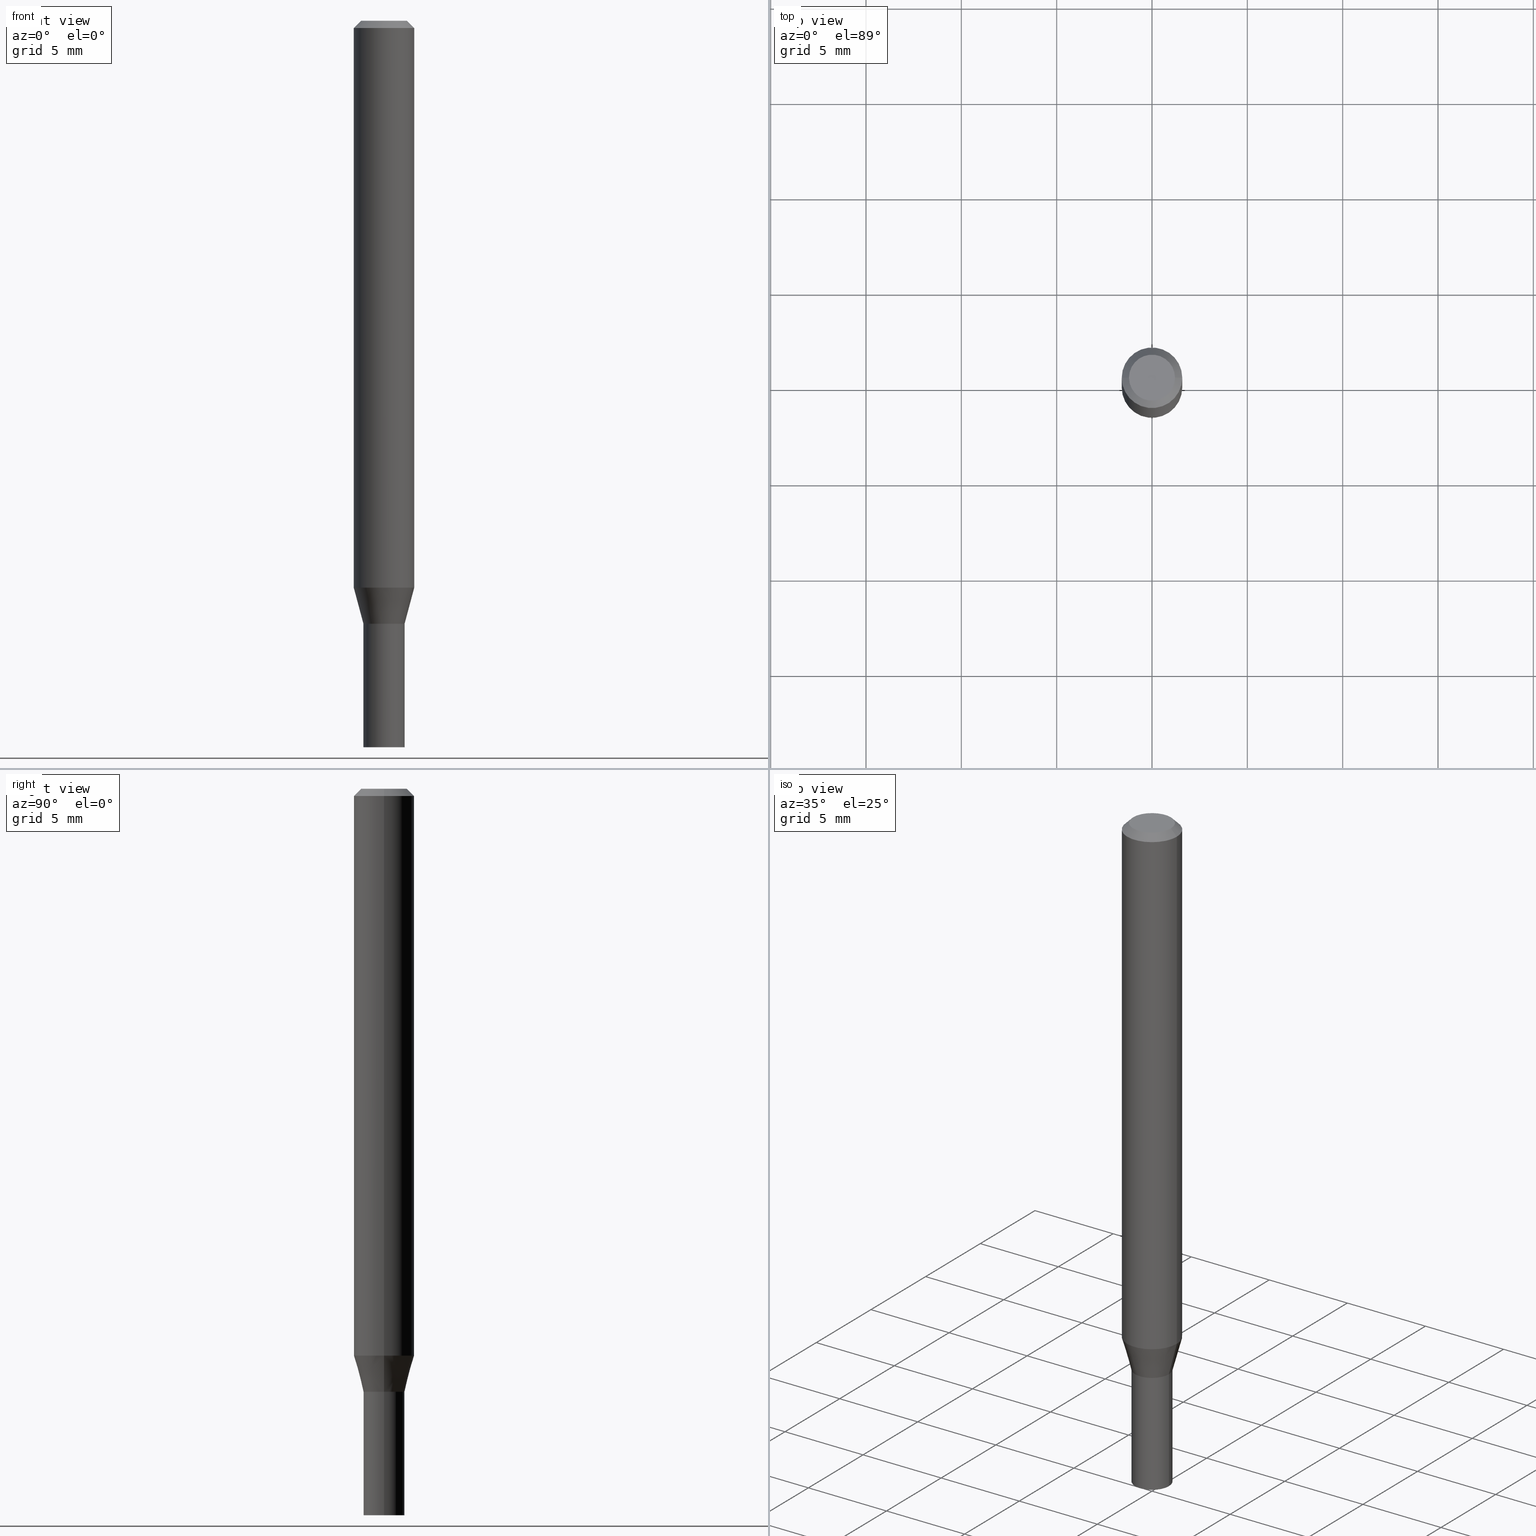
[diagram: canonical four-view strip — front | top / right | iso, engineering-drawing reading convention]
A machine part, canonical four-view strip (front | top / right | iso — engineering-drawing reading convention). The complete STEP part file that produces these views, byte-faithful:
ISO-10303-21;
HEADER;
FILE_DESCRIPTION (( 'STEP AP203' ),
    '1' );
FILE_NAME ('04173.STEP',
    '2024-03-14T17:11:27',
    ( '' ),
    ( '' ),
    'SwSTEP 2.0',
    'SolidWorks 2023',
    '' );
FILE_SCHEMA (( 'CONFIG_CONTROL_DESIGN' ));
ENDSEC;

DATA;
#1 = CARTESIAN_POINT ( 'NONE',  ( 3.044608663700496655E-29, -4.346894266859718224E-15, -1.245000000000000551 ) ) ;
#2 = AXIS2_PLACEMENT_3D ( 'NONE', #245, #105, #337 ) ;
#3 = CARTESIAN_POINT ( 'NONE',  ( 3.044608663700496655E-29, -4.346894266859718224E-15, -1.245000000000000551 ) ) ;
#4 = ORIENTED_EDGE ( 'NONE', *, *, #405, .T. ) ;
#5 = CARTESIAN_POINT ( 'NONE',  ( 3.044608663700495534E-29, -4.346894266859716647E-15, -1.245000000000000329 ) ) ;
#6 = ORIENTED_EDGE ( 'NONE', *, *, #369, .T. ) ;
#7 = PLANE ( 'NONE',  #281 ) ;
#8 = CC_DESIGN_PERSON_AND_ORGANIZATION_ASSIGNMENT ( #332, #18, ( #425 ) ) ;
#9 = AXIS2_PLACEMENT_3D ( 'NONE', #150, #10, #387 ) ;
#10 = DIRECTION ( 'NONE',  ( -2.445468806185136597E-29, 3.491481338843145583E-15, 1.000000000000000000 ) ) ;
#11 = CARTESIAN_POINT ( 'NONE',  ( -0.06250000000000000000, 4.440892098500626162E-16, -3.074334431409316114E-30 ) ) ;
#12 = VERTEX_POINT ( 'NONE', #170 ) ;
#13 = DIRECTION ( 'NONE',  ( -2.438088387897960049E-29, 3.491481338843145188E-15, 1.000000000000000000 ) ) ;
#14 = LINE ( 'NONE', #11, #110 ) ;
#15 = DIRECTION ( 'NONE',  ( -2.445468806185136597E-29, 3.491481338843145583E-15, 1.000000000000000000 ) ) ;
#16 = AXIS2_PLACEMENT_3D ( 'NONE', #299, #295, #70 ) ;
#17 = FACE_OUTER_BOUND ( 'NONE', #233, .T. ) ;
#18 = PERSON_AND_ORGANIZATION_ROLE ( 'classification_officer' ) ;
#19 = VERTEX_POINT ( 'NONE', #262 ) ;
#20 = DIRECTION ( 'NONE',  ( -2.445468806185136597E-29, 3.491481338843145583E-15, 1.000000000000000000 ) ) ;
#21 = MECHANICAL_CONTEXT ( 'NONE', #46, 'mechanical' ) ;
#22 =( CONVERSION_BASED_UNIT ( 'INCH', #238 ) LENGTH_UNIT ( ) NAMED_UNIT ( #417 ) );
#23 = EDGE_CURVE ( 'NONE', #397, #72, #241, .T. ) ;
#24 = LOCAL_TIME ( 13, 11, 27.00000000000000000, #416 ) ;
#25 = DIRECTION ( 'NONE',  ( 2.438088387897960049E-29, -3.491481338843145188E-15, -1.000000000000000000 ) ) ;
#26 =( LENGTH_UNIT ( ) NAMED_UNIT ( * ) SI_UNIT ( $, .METRE. ) );
#27 = ORIENTED_EDGE ( 'NONE', *, *, #456, .F. ) ;
#28 = DIRECTION ( 'NONE',  ( -0.2588190451025216832, 5.211531920934551831E-15, 0.9659258262890679791 ) ) ;
#29 = COORDINATED_UNIVERSAL_TIME_OFFSET ( 5, 0, .BEHIND. ) ;
#30 = VERTEX_POINT ( 'NONE', #140 ) ;
#31 = PERSON_AND_ORGANIZATION ( #270, #195 ) ;
#32 = CIRCLE ( 'NONE', #94, 0.04250000000000019734 ) ;
#33 = AXIS2_PLACEMENT_3D ( 'NONE', #291, #15, #400 ) ;
#34 = ORIENTED_EDGE ( 'NONE', *, *, #428, .F. ) ;
#35 = FACE_OUTER_BOUND ( 'NONE', #246, .T. ) ;
#36 = ORIENTED_EDGE ( 'NONE', *, *, #192, .F. ) ;
#37 = CARTESIAN_POINT ( 'NONE',  ( -0.06250000000000000000, 3.840629472727444916E-16, -0.01499999999999999944 ) ) ;
#38 = CC_DESIGN_APPROVAL ( #135, ( #80 ) ) ;
#39 = EDGE_LOOP ( 'NONE', ( #237, #344, #69, #430 ) ) ;
#40 = CARTESIAN_POINT ( 'NONE',  ( 0.06250000000000000000, -4.522721719210286280E-15, -1.170358983848623469 ) ) ;
#41 = ADVANCED_FACE ( 'NONE', ( #380 ), #292, .T. ) ;
#42 = EDGE_CURVE ( 'NONE', #225, #82, #174, .T. ) ;
#43 = FACE_OUTER_BOUND ( 'NONE', #118, .T. ) ;
#44 = CIRCLE ( 'NONE', #393, 0.04249999999999999611 ) ;
#45 = CARTESIAN_POINT ( 'NONE',  ( 0.04250000000000019734, -4.643670180661383298E-15, -1.244999999999999885 ) ) ;
#46 = APPLICATION_CONTEXT ( 'configuration controlled 3d designs of mechanical parts and assemblies' ) ;
#47 = VECTOR ( 'NONE', #130, 39.37007874015748143 ) ;
#48 = CC_DESIGN_APPROVAL ( #239, ( #56 ) ) ;
#49 = DIRECTION ( 'NONE',  ( -2.445468806185136597E-29, 3.491481338843145583E-15, 1.000000000000000000 ) ) ;
#50 = DIRECTION ( 'NONE',  ( -2.445468806185136877E-29, 3.491481338843145188E-15, 1.000000000000000000 ) ) ;
#51 = DIRECTION ( 'NONE',  ( 1.000000000000000000, -6.982962677686276177E-15, 0.000000000000000000 ) ) ;
#52 = DIRECTION ( 'NONE',  ( -2.445468806185136597E-29, 3.491481338843145583E-15, 1.000000000000000000 ) ) ;
#53 = DIRECTION ( 'NONE',  ( 1.000000000000000000, -6.982962677686267499E-15, 4.876176775795935793E-29 ) ) ;
#54 = AXIS2_PLACEMENT_3D ( 'NONE', #111, #243, #101 ) ;
#55 = CIRCLE ( 'NONE', #138, 0.06250000000000000000 ) ;
#56 = PRODUCT_DEFINITION_FORMATION_WITH_SPECIFIED_SOURCE ( 'ANY', '', #263, .NOT_KNOWN. ) ;
#57 = DIRECTION ( 'NONE',  ( 0.7071067811865452413, -7.319954787623248157E-15, -0.7071067811865497932 ) ) ;
#58 = SECURITY_CLASSIFICATION_LEVEL ( 'unclassified' ) ;
#59 = DIRECTION ( 'NONE',  ( 1.000000000000000000, -6.982962677686254089E-15, 0.000000000000000000 ) ) ;
#60 = PERSON_AND_ORGANIZATION_ROLE ( 'creator' ) ;
#61 = ADVANCED_FACE ( 'NONE', ( #17 ), #414, .T. ) ;
#62 = EDGE_CURVE ( 'NONE', #12, #302, #143, .T. ) ;
#63 = ORIENTED_EDGE ( 'NONE', *, *, #141, .T. ) ;
#64 = CARTESIAN_POINT ( 'NONE',  ( -0.04249999999999999611, -4.490077474864174959E-15, -1.245000000000000329 ) ) ;
#65 = EDGE_LOOP ( 'NONE', ( #264, #63 ) ) ;
#66 = CIRCLE ( 'NONE', #175, 0.04249999999999999611 ) ;
#67 = VERTEX_POINT ( 'NONE', #107 ) ;
#68 = PERSON_AND_ORGANIZATION ( #270, #195 ) ;
#69 = ORIENTED_EDGE ( 'NONE', *, *, #221, .T. ) ;
#70 = DIRECTION ( 'NONE',  ( 1.000000000000000000, -6.982962677686265922E-15, 4.876176775795935793E-29 ) ) ;
#71 = APPROVAL_DATE_TIME ( #463, #239 ) ;
#72 = VERTEX_POINT ( 'NONE', #384 ) ;
#73 = DIRECTION ( 'NONE',  ( -2.445468806185136597E-29, 3.491481338843145583E-15, 1.000000000000000000 ) ) ;
#74 = ORIENTED_EDGE ( 'NONE', *, *, #244, .F. ) ;
#75 = AXIS2_PLACEMENT_3D ( 'NONE', #258, #52, #444 ) ;
#76 = ADVANCED_FACE ( 'NONE', ( #172 ), #137, .F. ) ;
#77 = ORIENTED_EDGE ( 'NONE', *, *, #286, .T. ) ;
#78 = CARTESIAN_POINT ( 'NONE',  ( -0.04250000000000019734, 3.019806626980439812E-16, -2.090547413358344318E-30 ) ) ;
#79 = ORIENTED_EDGE ( 'NONE', *, *, #102, .F. ) ;
#80 = PRODUCT_DEFINITION ( 'UNKNOWN', '', #56, #446 ) ;
#81 = FACE_OUTER_BOUND ( 'NONE', #39, .T. ) ;
#82 = VERTEX_POINT ( 'NONE', #339 ) ;
#83 = EDGE_LOOP ( 'NONE', ( #127, #376 ) ) ;
#84 = CONICAL_SURFACE ( 'NONE', #187, 0.06250000000000000000, 0.7853981633974450594 ) ;
#85 = ORIENTED_EDGE ( 'NONE', *, *, #333, .T. ) ;
#86 = DIRECTION ( 'NONE',  ( -2.445468806185136877E-29, 3.491481338843145188E-15, 1.000000000000000000 ) ) ;
#87 = LOCAL_TIME ( 13, 11, 27.00000000000000000, #163 ) ;
#88 = CARTESIAN_POINT ( 'NONE',  ( 3.668203209277705088E-31, -5.237222008264718399E-17, -0.01499999999999999944 ) ) ;
#89 = EDGE_CURVE ( 'NONE', #72, #189, #265, .T. ) ;
#90 = LINE ( 'NONE', #421, #359 ) ;
#91 = CYLINDRICAL_SURFACE ( 'NONE', #276, 0.04249999999999999611 ) ;
#92 = EDGE_CURVE ( 'NONE', #72, #397, #464, .T. ) ;
#93 = CARTESIAN_POINT ( 'NONE',  ( 3.043385929297403293E-29, -4.345148526190295932E-15, -1.244500000000000384 ) ) ;
#94 = AXIS2_PLACEMENT_3D ( 'NONE', #388, #282, #353 ) ;
#95 = DIRECTION ( 'NONE',  ( 1.000000000000000000, -6.982962677686276177E-15, 0.000000000000000000 ) ) ;
#96 = DIRECTION ( 'NONE',  ( 1.000000000000000000, -6.982962677686275388E-15, 0.000000000000000000 ) ) ;
#97 = CLOSED_SHELL ( 'NONE', ( #176, #41, #318, #61, #183, #297, #203, #429, #298, #373, #285, #124 ) ) ;
#98 = CONICAL_SURFACE ( 'NONE', #117, 0.04199999999999999567, 0.7853981633974739252 ) ;
#99 = CC_DESIGN_PERSON_AND_ORGANIZATION_ASSIGNMENT ( #31, #60, ( #56 ) ) ;
#100 = ORIENTED_EDGE ( 'NONE', *, *, #428, .T. ) ;
#101 = DIRECTION ( 'NONE',  ( 1.000000000000000000, -6.982962677686266711E-15, 4.876176775795935793E-29 ) ) ;
#102 = EDGE_CURVE ( 'NONE', #67, #225, #308, .T. ) ;
#103 = CARTESIAN_POINT ( 'NONE',  ( -2.427605901612193195E-45, 3.465977845273231710E-31, 9.926955091278351202E-17 ) ) ;
#104 = CALENDAR_DATE ( 2024, 14, 3 ) ;
#105 = DIRECTION ( 'NONE',  ( -2.445468806185136597E-29, 3.491481338843145583E-15, 1.000000000000000000 ) ) ;
#106 = EDGE_LOOP ( 'NONE', ( #404, #432, #386, #27 ) ) ;
#107 = CARTESIAN_POINT ( 'NONE',  ( -0.04749999999999999362, 3.578768372314212971E-16, 9.926955091278110846E-17 ) ) ;
#108 = CALENDAR_DATE ( 2024, 14, 3 ) ;
#109 = ORIENTED_EDGE ( 'NONE', *, *, #351, .T. ) ;
#110 = VECTOR ( 'NONE', #287, 39.37007874015748143 ) ;
#111 = CARTESIAN_POINT ( 'NONE',  ( 0.000000000000000000, 0.000000000000000000, 0.000000000000000000 ) ) ;
#112 = COORDINATED_UNIVERSAL_TIME_OFFSET ( 5, 0, .BEHIND. ) ;
#113 = CYLINDRICAL_SURFACE ( 'NONE', #9, 0.04250000000000019734 ) ;
#114 = APPROVAL_STATUS ( 'not_yet_approved' ) ;
#115 = APPLICATION_CONTEXT ( 'configuration controlled 3d designs of mechanical parts and assemblies' ) ;
#116 = VERTEX_POINT ( 'NONE', #64 ) ;
#117 = AXIS2_PLACEMENT_3D ( 'NONE', #1, #152, #121 ) ;
#118 = EDGE_LOOP ( 'NONE', ( #412, #439 ) ) ;
#119 = EDGE_CURVE ( 'NONE', #225, #67, #374, .T. ) ;
#120 = ORIENTED_EDGE ( 'NONE', *, *, #333, .F. ) ;
#121 = DIRECTION ( 'NONE',  ( 1.000000000000000000, -6.982962677686275388E-15, 0.000000000000000000 ) ) ;
#122 = UNCERTAINTY_MEASURE_WITH_UNIT (LENGTH_MEASURE( 1.000000000000000082E-05 ), #22, 'distance_accuracy_value', 'NONE');
#123 = VERTEX_POINT ( 'NONE', #159 ) ;
#124 = ADVANCED_FACE ( 'NONE', ( #390 ), #113, .F. ) ;
#125 = AXIS2_PLACEMENT_3D ( 'NONE', #458, #139, #269 ) ;
#126 = LINE ( 'NONE', #198, #259 ) ;
#127 = ORIENTED_EDGE ( 'NONE', *, *, #102, .T. ) ;
#128 = CARTESIAN_POINT ( 'NONE',  ( 2.967759138016967261E-16, 0.04249999999999565237, -1.245000000000000551 ) ) ;
#129 = DIRECTION ( 'NONE',  ( 1.000000000000000000, -6.982962677686262766E-15, 0.000000000000000000 ) ) ;
#130 = DIRECTION ( 'NONE',  ( -2.445468806185136877E-29, 3.491481338843145188E-15, 1.000000000000000000 ) ) ;
#131 = CARTESIAN_POINT ( 'NONE',  ( 0.000000000000000000, 0.000000000000000000, 0.000000000000000000 ) ) ;
#132 = LINE ( 'NONE', #196, #438 ) ;
#133 = DIRECTION ( 'NONE',  ( 1.000000000000000000, -6.982962677686266711E-15, 0.000000000000000000 ) ) ;
#134 = CARTESIAN_POINT ( 'NONE',  ( 0.04749999999999999362, -4.035134999187576651E-16, 9.926955091278610047E-17 ) ) ;
#135 = APPROVAL ( #420, 'UNSPECIFIED' ) ;
#136 = EDGE_LOOP ( 'NONE', ( #36, #4, #217, #305 ) ) ;
#137 = PLANE ( 'NONE',  #16 ) ;
#138 = AXIS2_PLACEMENT_3D ( 'NONE', #370, #455, #133 ) ;
#139 = DIRECTION ( 'NONE',  ( -2.445468806185136597E-29, 3.491481338843145583E-15, 1.000000000000000000 ) ) ;
#140 = CARTESIAN_POINT ( 'NONE',  ( 0.04249999999999999611, -5.533997922066385616E-15, -1.500000000000000222 ) ) ;
#141 = EDGE_CURVE ( 'NONE', #116, #19, #44, .T. ) ;
#142 = APPLICATION_PROTOCOL_DEFINITION ( 'international standard', 'config_control_design', 1994, #46 ) ;
#143 = LINE ( 'NONE', #201, #424 ) ;
#144 = DATE_TIME_ROLE ( 'creation_date' ) ;
#145 = VERTEX_POINT ( 'NONE', #279 ) ;
#146 = VECTOR ( 'NONE', #86, 39.37007874015748143 ) ;
#147 = PERSON_AND_ORGANIZATION_ROLE ( 'design_supplier' ) ;
#148 = EDGE_CURVE ( 'NONE', #30, #145, #375, .T. ) ;
#149 = CC_DESIGN_PERSON_AND_ORGANIZATION_ASSIGNMENT ( #180, #147, ( #56 ) ) ;
#150 = CARTESIAN_POINT ( 'NONE',  ( 0.000000000000000000, 0.000000000000000000, 0.000000000000000000 ) ) ;
#151 = ORIENTED_EDGE ( 'NONE', *, *, #391, .T. ) ;
#152 = DIRECTION ( 'NONE',  ( -2.445468806185136597E-29, 3.491481338843145583E-15, 1.000000000000000000 ) ) ;
#153 = AXIS2_PLACEMENT_3D ( 'NONE', #5, #49, #197 ) ;
#154 = FACE_OUTER_BOUND ( 'NONE', #321, .T. ) ;
#155 = DIRECTION ( 'NONE',  ( -2.445468806185136597E-29, 3.491481338843145583E-15, 1.000000000000000000 ) ) ;
#156 = DIRECTION ( 'NONE',  ( -2.445468806185136597E-29, 3.491481338843145583E-15, 1.000000000000000000 ) ) ;
#157 = EDGE_LOOP ( 'NONE', ( #361, #249, #120, #392 ) ) ;
#158 = DIRECTION ( 'NONE',  ( -2.445468806185136877E-29, 3.491481338843145188E-15, 1.000000000000000000 ) ) ;
#159 = CARTESIAN_POINT ( 'NONE',  ( -0.06250000000000000000, -1.625240176118708426E-15, -0.01499999999999999944 ) ) ;
#160 = VECTOR ( 'NONE', #186, 39.37007874015748143 ) ;
#161 = FACE_OUTER_BOUND ( 'NONE', #136, .T. ) ;
#162 = LINE ( 'NONE', #218, #413 ) ;
#163 = COORDINATED_UNIVERSAL_TIME_OFFSET ( 5, 0, .BEHIND. ) ;
#164 = CARTESIAN_POINT ( 'NONE',  ( 3.668203209277705088E-31, -5.237222008264718399E-17, -0.01499999999999999944 ) ) ;
#165 = CYLINDRICAL_SURFACE ( 'NONE', #349, 0.06250000000000000000 ) ;
#166 =( GEOMETRIC_REPRESENTATION_CONTEXT ( 3 ) GLOBAL_UNCERTAINTY_ASSIGNED_CONTEXT ( ( #122 ) ) GLOBAL_UNIT_ASSIGNED_CONTEXT ( ( #22, #205, #462 ) ) REPRESENTATION_CONTEXT ( 'NONE', 'WORKASPACE' ) );
#167 = LOCAL_TIME ( 13, 11, 27.00000000000000000, #112 ) ;
#168 = DIRECTION ( 'NONE',  ( 1.000000000000000000, -6.982962677686266711E-15, 0.000000000000000000 ) ) ;
#169 = DATE_AND_TIME ( #261, #87 ) ;
#170 = CARTESIAN_POINT ( 'NONE',  ( -0.04199999999999999567, -4.045817090666363103E-15, -1.245000000000000551 ) ) ;
#171 = CC_DESIGN_PERSON_AND_ORGANIZATION_ASSIGNMENT ( #347, #273, ( #263 ) ) ;
#172 = FACE_OUTER_BOUND ( 'NONE', #247, .T. ) ;
#173 = APPROVAL_ROLE ( '' ) ;
#174 = LINE ( 'NONE', #204, #358 ) ;
#175 = AXIS2_PLACEMENT_3D ( 'NONE', #193, #406, #95 ) ;
#176 = ADVANCED_FACE ( 'NONE', ( #327 ), #449, .F. ) ;
#177 = CARTESIAN_POINT ( 'NONE',  ( -0.04250000000000019734, -4.043167863492251902E-15, -1.244500000000000384 ) ) ;
#178 = DIRECTION ( 'NONE',  ( -0.7071067811865656694, 7.493145998870420424E-15, 0.7071067811865294761 ) ) ;
#179 = DATE_AND_TIME ( #378, #433 ) ;
#180 = PERSON_AND_ORGANIZATION ( #270, #195 ) ;
#181 = ORIENTED_EDGE ( 'NONE', *, *, #283, .F. ) ;
#182 = CC_DESIGN_DATE_AND_TIME_ASSIGNMENT ( #179, #144, ( #80 ) ) ;
#183 = ADVANCED_FACE ( 'NONE', ( #226 ), #194, .T. ) ;
#184 = EDGE_LOOP ( 'NONE', ( #379, #355, #151, #451 ) ) ;
#185 = VERTEX_POINT ( 'NONE', #364 ) ;
#186 = DIRECTION ( 'NONE',  ( -0.7071067811865452413, 2.468850131082233000E-15, -0.7071067811865497932 ) ) ;
#187 = AXIS2_PLACEMENT_3D ( 'NONE', #191, #460, #357 ) ;
#188 = EDGE_LOOP ( 'NONE', ( #435, #100, #6, #314 ) ) ;
#189 = VERTEX_POINT ( 'NONE', #409 ) ;
#190 = DIRECTION ( 'NONE',  ( 1.000000000000000000, -6.982962677686267499E-15, 4.884662768193073002E-29 ) ) ;
#191 = CARTESIAN_POINT ( 'NONE',  ( 3.668203209277705088E-31, -5.237222008264718399E-17, -0.01499999999999999944 ) ) ;
#192 = EDGE_CURVE ( 'NONE', #189, #123, #14, .T. ) ;
#193 = CARTESIAN_POINT ( 'NONE',  ( 3.668203209277704895E-29, -5.237222008264718177E-15, -1.500000000000000222 ) ) ;
#194 = CONICAL_SURFACE ( 'NONE', #216, 0.04250000000000019734, 0.2617993877991502960 ) ;
#195 = ORGANIZATION ( 'UNSPECIFIED', 'UNSPECIFIED', '' ) ;
#196 = CARTESIAN_POINT ( 'NONE',  ( 0.04250000000000019734, -4.643670180661383298E-15, -1.244999999999999885 ) ) ;
#197 = DIRECTION ( 'NONE',  ( 1.000000000000000000, -6.982962677686265133E-15, 0.000000000000000000 ) ) ;
#198 = CARTESIAN_POINT ( 'NONE',  ( 0.04250000000000019734, -2.967759138016676861E-16, 2.072375129713282311E-30 ) ) ;
#199 = AXIS2_PLACEMENT_3D ( 'NONE', #326, #13, #362 ) ;
#200 = ORIENTED_EDGE ( 'NONE', *, *, #148, .F. ) ;
#201 = CARTESIAN_POINT ( 'NONE',  ( -0.04199999999999999567, -4.048466317840475881E-15, -1.245000000000000551 ) ) ;
#202 = AXIS2_PLACEMENT_3D ( 'NONE', #164, #322, #447 ) ;
#203 = ADVANCED_FACE ( 'NONE', ( #161 ), #165, .T. ) ;
#204 = CARTESIAN_POINT ( 'NONE',  ( 0.06250000000000000000, -4.811533449433679005E-16, -0.01499999999999999944 ) ) ;
#205 =( NAMED_UNIT ( * ) PLANE_ANGLE_UNIT ( ) SI_UNIT ( $, .RADIAN. ) );
#206 = PERSON_AND_ORGANIZATION ( #270, #195 ) ;
#207 = ADVANCED_FACE ( 'NONE', ( #403 ), #91, .T. ) ;
#208 = CC_DESIGN_DATE_AND_TIME_ASSIGNMENT ( #169, #453, ( #425 ) ) ;
#209 = CARTESIAN_POINT ( 'NONE',  ( 3.668203209277704895E-29, -5.237222008264718177E-15, -1.500000000000000222 ) ) ;
#210 = AXIS2_PLACEMENT_3D ( 'NONE', #93, #156, #228 ) ;
#211 = LINE ( 'NONE', #78, #288 ) ;
#212 = EDGE_LOOP ( 'NONE', ( #338, #434, #74, #348 ) ) ;
#213 = DIRECTION ( 'NONE',  ( -2.445468806185136877E-29, 3.491481338843145188E-15, 1.000000000000000000 ) ) ;
#214 = PERSON_AND_ORGANIZATION ( #270, #195 ) ;
#215 = ORIENTED_EDGE ( 'NONE', *, *, #192, .T. ) ;
#216 = AXIS2_PLACEMENT_3D ( 'NONE', #407, #320, #445 ) ;
#217 = ORIENTED_EDGE ( 'NONE', *, *, #254, .T. ) ;
#218 = CARTESIAN_POINT ( 'NONE',  ( -0.04249999999999999611, 3.019806626980425514E-16, -2.090547413358334859E-30 ) ) ;
#219 = ORIENTED_EDGE ( 'NONE', *, *, #42, .F. ) ;
#220 = PLANE ( 'NONE',  #199 ) ;
#221 = EDGE_CURVE ( 'NONE', #82, #123, #399, .T. ) ;
#222 = APPROVAL ( #114, 'UNSPECIFIED' ) ;
#223 = CARTESIAN_POINT ( 'NONE',  ( 0.04199999999999999567, -4.640178699322541079E-15, -1.245000000000000551 ) ) ;
#224 = DIRECTION ( 'NONE',  ( -2.445468806185136597E-29, 3.491481338843145583E-15, 1.000000000000000000 ) ) ;
#225 = VERTEX_POINT ( 'NONE', #134 ) ;
#226 = FACE_OUTER_BOUND ( 'NONE', #157, .T. ) ;
#227 = DIRECTION ( 'NONE',  ( 1.000000000000000000, -6.982962677686267499E-15, 4.876176775795935793E-29 ) ) ;
#228 = DIRECTION ( 'NONE',  ( 1.000000000000000000, -6.982962677686265922E-15, 0.000000000000000000 ) ) ;
#229 = DIRECTION ( 'NONE',  ( -2.445468806185136597E-29, 3.491481338843145583E-15, 1.000000000000000000 ) ) ;
#230 = DIRECTION ( 'NONE',  ( 1.000000000000000000, -6.982962677686254089E-15, 0.000000000000000000 ) ) ;
#231 = CIRCLE ( 'NONE', #75, 0.06250000000000000000 ) ;
#232 = CC_DESIGN_SECURITY_CLASSIFICATION ( #425, ( #56 ) ) ;
#233 = EDGE_LOOP ( 'NONE', ( #85, #215, #278, #466 ) ) ;
#234 = CARTESIAN_POINT ( 'NONE',  ( 3.044608663700494973E-29, -4.346894266859715858E-15, -1.244999999999999885 ) ) ;
#235 = APPROVAL_DATE_TIME ( #240, #135 ) ;
#236 = DIRECTION ( 'NONE',  ( -2.445468806185136597E-29, 3.491481338843145583E-15, 1.000000000000000000 ) ) ;
#237 = ORIENTED_EDGE ( 'NONE', *, *, #119, .F. ) ;
#238 = LENGTH_MEASURE_WITH_UNIT ( LENGTH_MEASURE( 0.02539999999999999897 ), #26 );
#239 = APPROVAL ( #274, 'UNSPECIFIED' ) ;
#240 = DATE_AND_TIME ( #108, #24 ) ;
#241 = CIRCLE ( 'NONE', #300, 0.04250000000000019734 ) ;
#242 = AXIS2_PLACEMENT_3D ( 'NONE', #131, #334, #227 ) ;
#243 = DIRECTION ( 'NONE',  ( -2.445468806185136597E-29, 3.491481338843145583E-15, 1.000000000000000000 ) ) ;
#244 = EDGE_CURVE ( 'NONE', #19, #116, #251, .T. ) ;
#245 = CARTESIAN_POINT ( 'NONE',  ( 3.044608663700496655E-29, -4.346894266859718224E-15, -1.245000000000000551 ) ) ;
#246 = EDGE_LOOP ( 'NONE', ( #352, #381, #316, #280 ) ) ;
#247 = EDGE_LOOP ( 'NONE', ( #200, #34 ) ) ;
#248 = AXIS2_PLACEMENT_3D ( 'NONE', #209, #236, #51 ) ;
#249 = ORIENTED_EDGE ( 'NONE', *, *, #89, .T. ) ;
#250 = AXIS2_PLACEMENT_3D ( 'NONE', #234, #377, #59 ) ;
#251 = CIRCLE ( 'NONE', #153, 0.04249999999999999611 ) ;
#252 = LINE ( 'NONE', #365, #146 ) ;
#253 = CC_DESIGN_PERSON_AND_ORGANIZATION_ASSIGNMENT ( #68, #346, ( #80 ) ) ;
#254 = EDGE_CURVE ( 'NONE', #394, #82, #325, .T. ) ;
#255 = APPROVAL_ROLE ( '' ) ;
#256 = DIRECTION ( 'NONE',  ( 2.438088387897960049E-29, -3.491481338843145188E-15, -1.000000000000000000 ) ) ;
#257 = DIRECTION ( 'NONE',  ( 1.000000000000000000, -6.982962677686265133E-15, 0.000000000000000000 ) ) ;
#258 = CARTESIAN_POINT ( 'NONE',  ( 2.862076387040342886E-29, -4.086286551854895399E-15, -1.170358983848623469 ) ) ;
#259 = VECTOR ( 'NONE', #158, 39.37007874015748143 ) ;
#260 = FACE_OUTER_BOUND ( 'NONE', #65, .T. ) ;
#261 = CALENDAR_DATE ( 2024, 14, 3 ) ;
#262 = CARTESIAN_POINT ( 'NONE',  ( 0.04249999999999999611, -4.643670180661383298E-15, -1.245000000000000329 ) ) ;
#263 = PRODUCT ( '04173', '04173', '', ( #21 ) ) ;
#264 = ORIENTED_EDGE ( 'NONE', *, *, #244, .T. ) ;
#265 = LINE ( 'NONE', #345, #275 ) ;
#266 = CARTESIAN_POINT ( 'NONE',  ( 0.000000000000000000, 0.000000000000000000, 0.000000000000000000 ) ) ;
#267 = CIRCLE ( 'NONE', #431, 0.06250000000000000000 ) ;
#268 = DIRECTION ( 'NONE',  ( -1.000000000000000000, 6.982962677686265922E-15, -4.876176775795935793E-29 ) ) ;
#269 = DIRECTION ( 'NONE',  ( 1.000000000000000000, -6.982962677686267499E-15, 4.884662768193073002E-29 ) ) ;
#270 = PERSON ( 'UNSPECIFIED', 'UNSPECIFIED', 'UNSPECIFIED', ('UNSPECIFIED'), ('UNSPECIFIED'), ('UNSPECIFIED') ) ;
#271 = EDGE_CURVE ( 'NONE', #185, #302, #32, .T. ) ;
#272 = DIRECTION ( 'NONE',  ( -2.445468806185136597E-29, 3.491481338843145583E-15, 1.000000000000000000 ) ) ;
#273 = PERSON_AND_ORGANIZATION_ROLE ( 'design_owner' ) ;
#274 = APPROVAL_STATUS ( 'not_yet_approved' ) ;
#275 = VECTOR ( 'NONE', #28, 39.37007874015748143 ) ;
#276 = AXIS2_PLACEMENT_3D ( 'NONE', #452, #224, #53 ) ;
#277 = LOCAL_TIME ( 13, 11, 27.00000000000000000, #304 ) ;
#278 = ORIENTED_EDGE ( 'NONE', *, *, #221, .F. ) ;
#279 = CARTESIAN_POINT ( 'NONE',  ( -0.04249999999999999611, -4.490077474864174959E-15, -1.500000000000000222 ) ) ;
#280 = ORIENTED_EDGE ( 'NONE', *, *, #391, .F. ) ;
#281 = AXIS2_PLACEMENT_3D ( 'NONE', #128, #256, #402 ) ;
#282 = DIRECTION ( 'NONE',  ( -2.445468806185136597E-29, 3.491481338843145583E-15, 1.000000000000000000 ) ) ;
#283 = EDGE_CURVE ( 'NONE', #72, #302, #211, .T. ) ;
#284 = ORIENTED_EDGE ( 'NONE', *, *, #92, .T. ) ;
#285 = ADVANCED_FACE ( 'NONE', ( #35 ), #98, .T. ) ;
#286 = EDGE_CURVE ( 'NONE', #67, #123, #356, .T. ) ;
#287 = DIRECTION ( 'NONE',  ( -2.445468806185136877E-29, 3.491481338843145188E-15, 1.000000000000000000 ) ) ;
#288 = VECTOR ( 'NONE', #213, 39.37007874015748143 ) ;
#289 = CARTESIAN_POINT ( 'NONE',  ( 3.044608663700495534E-29, -4.346894266859716647E-15, -1.245000000000000329 ) ) ;
#290 = CARTESIAN_POINT ( 'NONE',  ( 0.06250000000000000000, -4.364351673553916694E-16, 3.047610484872459871E-30 ) ) ;
#291 = CARTESIAN_POINT ( 'NONE',  ( 0.000000000000000000, 0.000000000000000000, 0.000000000000000000 ) ) ;
#292 = CONICAL_SURFACE ( 'NONE', #457, 0.04199999999999999567, 0.7853981633974739252 ) ;
#293 = DIRECTION ( 'NONE',  ( 0.7071067811865656694, -2.468850131082446387E-15, 0.7071067811865294761 ) ) ;
#294 = MANIFOLD_SOLID_BREP ( 'Body-Move/Copy2[1]', #341 ) ;
#295 = DIRECTION ( 'NONE',  ( -2.438088387897960049E-29, 3.491481338843145188E-15, 1.000000000000000000 ) ) ;
#296 = FACE_OUTER_BOUND ( 'NONE', #83, .T. ) ;
#297 = ADVANCED_FACE ( 'NONE', ( #154 ), #301, .T. ) ;
#298 = ADVANCED_FACE ( 'NONE', ( #296 ), #343, .F. ) ;
#299 = CARTESIAN_POINT ( 'NONE',  ( 3.576687321579069994E-29, -5.368277968210015545E-15, -1.500000000000000222 ) ) ;
#300 = AXIS2_PLACEMENT_3D ( 'NONE', #306, #331, #422 ) ;
#301 = CONICAL_SURFACE ( 'NONE', #315, 0.04250000000000019734, 0.2617993877991502960 ) ;
#302 = VERTEX_POINT ( 'NONE', #177 ) ;
#303 = PERSON_AND_ORGANIZATION ( #270, #195 ) ;
#304 = COORDINATED_UNIVERSAL_TIME_OFFSET ( 5, 0, .BEHIND. ) ;
#305 = ORIENTED_EDGE ( 'NONE', *, *, #313, .F. ) ;
#306 = CARTESIAN_POINT ( 'NONE',  ( 3.044608663700494973E-29, -4.346894266859715858E-15, -1.244999999999999885 ) ) ;
#307 = DIRECTION ( 'NONE',  ( 0.000000000000000000, 0.000000000000000000, 1.000000000000000000 ) ) ;
#308 = CIRCLE ( 'NONE', #125, 0.04749999999999999362 ) ;
#309 = CIRCLE ( 'NONE', #368, 0.04199999999999999567 ) ;
#310 = DIRECTION ( 'NONE',  ( 1.000000000000000000, -6.982962677686275388E-15, 0.000000000000000000 ) ) ;
#311 = ADVANCED_FACE ( 'NONE', ( #330 ), #372, .T. ) ;
#312 = EDGE_LOOP ( 'NONE', ( #219, #79, #77, #396 ) ) ;
#313 = EDGE_CURVE ( 'NONE', #123, #82, #55, .T. ) ;
#314 = ORIENTED_EDGE ( 'NONE', *, *, #141, .F. ) ;
#315 = AXIS2_PLACEMENT_3D ( 'NONE', #366, #272, #230 ) ;
#316 = ORIENTED_EDGE ( 'NONE', *, *, #456, .T. ) ;
#317 = EDGE_LOOP ( 'NONE', ( #181, #350, #109, #360 ) ) ;
#318 = ADVANCED_FACE ( 'NONE', ( #81 ), #84, .T. ) ;
#319 = FACE_OUTER_BOUND ( 'NONE', #312, .T. ) ;
#320 = DIRECTION ( 'NONE',  ( -2.445468806185136597E-29, 3.491481338843145583E-15, 1.000000000000000000 ) ) ;
#321 = EDGE_LOOP ( 'NONE', ( #354, #284, #389, #395 ) ) ;
#322 = DIRECTION ( 'NONE',  ( 2.445468806185136597E-29, -3.491481338843145583E-15, -1.000000000000000000 ) ) ;
#323 = CIRCLE ( 'NONE', #210, 0.04250000000000019734 ) ;
#324 = EDGE_CURVE ( 'NONE', #12, #426, #309, .T. ) ;
#325 = LINE ( 'NONE', #290, #47 ) ;
#326 = CARTESIAN_POINT ( 'NONE',  ( 3.044608663700496655E-29, -4.346894266859718224E-15, -1.245000000000000551 ) ) ;
#327 = FACE_OUTER_BOUND ( 'NONE', #184, .T. ) ;
#328 = AXIS2_PLACEMENT_3D ( 'NONE', #88, #367, #168 ) ;
#329 = APPROVAL_PERSON_ORGANIZATION ( #206, #239, #423 ) ;
#330 = FACE_OUTER_BOUND ( 'NONE', #188, .T. ) ;
#331 = DIRECTION ( 'NONE',  ( -2.445468806185136597E-29, 3.491481338843145583E-15, 1.000000000000000000 ) ) ;
#332 = PERSON_AND_ORGANIZATION ( #270, #195 ) ;
#333 = EDGE_CURVE ( 'NONE', #394, #189, #267, .T. ) ;
#334 = DIRECTION ( 'NONE',  ( -2.445468806185136597E-29, 3.491481338843145583E-15, 1.000000000000000000 ) ) ;
#335 = EDGE_CURVE ( 'NONE', #145, #116, #162, .T. ) ;
#336 = DATE_AND_TIME ( #104, #277 ) ;
#337 = DIRECTION ( 'NONE',  ( 1.000000000000000000, -6.982962677686275388E-15, 0.000000000000000000 ) ) ;
#338 = ORIENTED_EDGE ( 'NONE', *, *, #148, .T. ) ;
#339 = CARTESIAN_POINT ( 'NONE',  ( 0.06250000000000000000, -4.888073874380388472E-16, -0.01499999999999999944 ) ) ;
#340 = APPLICATION_PROTOCOL_DEFINITION ( 'international standard', 'config_control_design', 1994, #115 ) ;
#341 = CLOSED_SHELL ( 'NONE', ( #207, #76, #311, #443 ) ) ;
#342 = CONICAL_SURFACE ( 'NONE', #202, 0.06250000000000000000, 0.7853981633974450594 ) ;
#343 = PLANE ( 'NONE',  #408 ) ;
#344 = ORIENTED_EDGE ( 'NONE', *, *, #42, .T. ) ;
#345 = CARTESIAN_POINT ( 'NONE',  ( -0.04250000000000019734, -4.044913604161671827E-15, -1.244999999999999885 ) ) ;
#346 = PERSON_AND_ORGANIZATION_ROLE ( 'creator' ) ;
#347 = PERSON_AND_ORGANIZATION ( #270, #195 ) ;
#348 = ORIENTED_EDGE ( 'NONE', *, *, #369, .F. ) ;
#349 = AXIS2_PLACEMENT_3D ( 'NONE', #441, #229, #371 ) ;
#350 = ORIENTED_EDGE ( 'NONE', *, *, #23, .F. ) ;
#351 = EDGE_CURVE ( 'NONE', #397, #185, #126, .T. ) ;
#352 = ORIENTED_EDGE ( 'NONE', *, *, #62, .F. ) ;
#353 = DIRECTION ( 'NONE',  ( 1.000000000000000000, -6.982962677686265922E-15, 0.000000000000000000 ) ) ;
#354 = ORIENTED_EDGE ( 'NONE', *, *, #89, .F. ) ;
#355 = ORIENTED_EDGE ( 'NONE', *, *, #283, .T. ) ;
#356 = LINE ( 'NONE', #37, #160 ) ;
#357 = DIRECTION ( 'NONE',  ( -1.000000000000000000, 6.982962677686266711E-15, 0.000000000000000000 ) ) ;
#358 = VECTOR ( 'NONE', #57, 39.37007874015748143 ) ;
#359 = VECTOR ( 'NONE', #293, 39.37007874015748143 ) ;
#360 = ORIENTED_EDGE ( 'NONE', *, *, #271, .T. ) ;
#361 = ORIENTED_EDGE ( 'NONE', *, *, #23, .T. ) ;
#362 = DIRECTION ( 'NONE',  ( 1.000000000000000000, -6.982962677686265922E-15, 4.876176775795935793E-29 ) ) ;
#363 = DIRECTION ( 'NONE',  ( -2.445468806185136597E-29, 3.491481338843145583E-15, 1.000000000000000000 ) ) ;
#364 = CARTESIAN_POINT ( 'NONE',  ( 0.04250000000000019734, -4.641924439991964161E-15, -1.244500000000000384 ) ) ;
#365 = CARTESIAN_POINT ( 'NONE',  ( 0.04249999999999999611, -2.967759138016663549E-16, 2.072375129713272502E-30 ) ) ;
#366 = CARTESIAN_POINT ( 'NONE',  ( 3.044608663700494973E-29, -4.346894266859715858E-15, -1.244999999999999885 ) ) ;
#367 = DIRECTION ( 'NONE',  ( -2.445468806185136597E-29, 3.491481338843145583E-15, 1.000000000000000000 ) ) ;
#368 = AXIS2_PLACEMENT_3D ( 'NONE', #3, #155, #310 ) ;
#369 = EDGE_CURVE ( 'NONE', #30, #19, #252, .T. ) ;
#370 = CARTESIAN_POINT ( 'NONE',  ( 3.668203209277705088E-31, -5.237222008264718399E-17, -0.01499999999999999944 ) ) ;
#371 = DIRECTION ( 'NONE',  ( 1.000000000000000000, -6.982962677686266711E-15, 4.876176775795935793E-29 ) ) ;
#372 = CYLINDRICAL_SURFACE ( 'NONE', #242, 0.04249999999999999611 ) ;
#373 = ADVANCED_FACE ( 'NONE', ( #43 ), #220, .F. ) ;
#374 = CIRCLE ( 'NONE', #437, 0.04749999999999999362 ) ;
#375 = CIRCLE ( 'NONE', #248, 0.04249999999999999611 ) ;
#376 = ORIENTED_EDGE ( 'NONE', *, *, #119, .T. ) ;
#377 = DIRECTION ( 'NONE',  ( -2.445468806185136597E-29, 3.491481338843145583E-15, 1.000000000000000000 ) ) ;
#378 = CALENDAR_DATE ( 2024, 14, 3 ) ;
#379 = ORIENTED_EDGE ( 'NONE', *, *, #92, .F. ) ;
#380 = FACE_OUTER_BOUND ( 'NONE', #106, .T. ) ;
#381 = ORIENTED_EDGE ( 'NONE', *, *, #324, .T. ) ;
#382 = APPROVAL_DATE_TIME ( #336, #222 ) ;
#383 = APPROVAL_PERSON_ORGANIZATION ( #303, #135, #173 ) ;
#384 = CARTESIAN_POINT ( 'NONE',  ( -0.04250000000000019734, -3.843555473083252305E-15, -1.244999999999999885 ) ) ;
#385 = CALENDAR_DATE ( 2024, 14, 3 ) ;
#386 = ORIENTED_EDGE ( 'NONE', *, *, #271, .F. ) ;
#387 = DIRECTION ( 'NONE',  ( 1.000000000000000000, -6.982962677686265922E-15, 4.876176775795935793E-29 ) ) ;
#388 = CARTESIAN_POINT ( 'NONE',  ( 3.043385929297403293E-29, -4.345148526190295932E-15, -1.244500000000000384 ) ) ;
#389 = ORIENTED_EDGE ( 'NONE', *, *, #401, .T. ) ;
#390 = FACE_OUTER_BOUND ( 'NONE', #317, .T. ) ;
#391 = EDGE_CURVE ( 'NONE', #302, #185, #323, .T. ) ;
#392 = ORIENTED_EDGE ( 'NONE', *, *, #401, .F. ) ;
#393 = AXIS2_PLACEMENT_3D ( 'NONE', #289, #73, #257 ) ;
#394 = VERTEX_POINT ( 'NONE', #40 ) ;
#395 = ORIENTED_EDGE ( 'NONE', *, *, #405, .F. ) ;
#396 = ORIENTED_EDGE ( 'NONE', *, *, #313, .T. ) ;
#397 = VERTEX_POINT ( 'NONE', #45 ) ;
#398 = DIRECTION ( 'NONE',  ( -2.445468806185136597E-29, 3.491481338843145583E-15, 1.000000000000000000 ) ) ;
#399 = CIRCLE ( 'NONE', #328, 0.06250000000000000000 ) ;
#400 = DIRECTION ( 'NONE',  ( 1.000000000000000000, -6.982962677686265922E-15, 4.876176775795935793E-29 ) ) ;
#401 = EDGE_CURVE ( 'NONE', #397, #394, #132, .T. ) ;
#402 = DIRECTION ( 'NONE',  ( -1.000000000000000000, 6.982962677686265922E-15, -4.876176775795935793E-29 ) ) ;
#403 = FACE_OUTER_BOUND ( 'NONE', #212, .T. ) ;
#404 = ORIENTED_EDGE ( 'NONE', *, *, #465, .T. ) ;
#405 = EDGE_CURVE ( 'NONE', #189, #394, #231, .T. ) ;
#406 = DIRECTION ( 'NONE',  ( -2.445468806185136597E-29, 3.491481338843145583E-15, 1.000000000000000000 ) ) ;
#407 = CARTESIAN_POINT ( 'NONE',  ( 3.044608663700494973E-29, -4.346894266859715858E-15, -1.244999999999999885 ) ) ;
#408 = AXIS2_PLACEMENT_3D ( 'NONE', #410, #25, #268 ) ;
#409 = CARTESIAN_POINT ( 'NONE',  ( -0.06250000000000000000, -3.642197342004831994E-15, -1.170358983848623469 ) ) ;
#410 = CARTESIAN_POINT ( 'NONE',  ( 3.316907271900976096E-16, 0.04749999999999999362, -1.162105881386576343E-16 ) ) ;
#411 = SHAPE_DEFINITION_REPRESENTATION ( #419, #427 ) ;
#412 = ORIENTED_EDGE ( 'NONE', *, *, #465, .F. ) ;
#413 = VECTOR ( 'NONE', #50, 39.37007874015748143 ) ;
#414 = CYLINDRICAL_SURFACE ( 'NONE', #54, 0.06250000000000000000 ) ;
#415 = AXIS2_PLACEMENT_3D ( 'NONE', #266, #307, #418 ) ;
#416 = COORDINATED_UNIVERSAL_TIME_OFFSET ( 5, 0, .BEHIND. ) ;
#417 = DIMENSIONAL_EXPONENTS ( 1.000000000000000000, 0.000000000000000000, 0.000000000000000000, 0.000000000000000000, 0.000000000000000000, 0.000000000000000000, 0.000000000000000000 ) ;
#418 = DIRECTION ( 'NONE',  ( 1.000000000000000000, 0.000000000000000000, 0.000000000000000000 ) ) ;
#419 = PRODUCT_DEFINITION_SHAPE ( 'NONE', 'NONE',  #80 ) ;
#420 = APPROVAL_STATUS ( 'not_yet_approved' ) ;
#421 = CARTESIAN_POINT ( 'NONE',  ( 0.04199999999999999567, -4.640178699322541079E-15, -1.245000000000000551 ) ) ;
#422 = DIRECTION ( 'NONE',  ( 1.000000000000000000, -6.982962677686254089E-15, 0.000000000000000000 ) ) ;
#423 = APPROVAL_ROLE ( '' ) ;
#424 = VECTOR ( 'NONE', #178, 39.37007874015748143 ) ;
#425 = SECURITY_CLASSIFICATION ( '', '', #58 ) ;
#426 = VERTEX_POINT ( 'NONE', #223 ) ;
#427 = ADVANCED_BREP_SHAPE_REPRESENTATION ( '04173', ( #294, #461, #415 ), #166 ) ;
#428 = EDGE_CURVE ( 'NONE', #145, #30, #66, .T. ) ;
#429 = ADVANCED_FACE ( 'NONE', ( #319 ), #342, .T. ) ;
#430 = ORIENTED_EDGE ( 'NONE', *, *, #286, .F. ) ;
#431 = AXIS2_PLACEMENT_3D ( 'NONE', #436, #398, #129 ) ;
#432 = ORIENTED_EDGE ( 'NONE', *, *, #62, .T. ) ;
#433 = LOCAL_TIME ( 13, 11, 27.00000000000000000, #29 ) ;
#434 = ORIENTED_EDGE ( 'NONE', *, *, #335, .T. ) ;
#435 = ORIENTED_EDGE ( 'NONE', *, *, #335, .F. ) ;
#436 = CARTESIAN_POINT ( 'NONE',  ( 2.862076387040342886E-29, -4.086286551854895399E-15, -1.170358983848623469 ) ) ;
#437 = AXIS2_PLACEMENT_3D ( 'NONE', #103, #363, #190 ) ;
#438 = VECTOR ( 'NONE', #440, 39.37007874015748143 ) ;
#439 = ORIENTED_EDGE ( 'NONE', *, *, #324, .F. ) ;
#440 = DIRECTION ( 'NONE',  ( 0.2588190451025216832, 1.565188264969619798E-15, 0.9659258262890679791 ) ) ;
#441 = CARTESIAN_POINT ( 'NONE',  ( 0.000000000000000000, 0.000000000000000000, 0.000000000000000000 ) ) ;
#442 = PRODUCT_RELATED_PRODUCT_CATEGORY ( 'detail', '', ( #263 ) ) ;
#443 = ADVANCED_FACE ( 'NONE', ( #260 ), #7, .F. ) ;
#444 = DIRECTION ( 'NONE',  ( 1.000000000000000000, -6.982962677686262766E-15, 0.000000000000000000 ) ) ;
#445 = DIRECTION ( 'NONE',  ( 1.000000000000000000, -6.982962677686254089E-15, 0.000000000000000000 ) ) ;
#446 = DESIGN_CONTEXT ( 'detailed design', #115, 'design' ) ;
#447 = DIRECTION ( 'NONE',  ( -1.000000000000000000, 6.982962677686266711E-15, 0.000000000000000000 ) ) ;
#448 = CIRCLE ( 'NONE', #2, 0.04199999999999999567 ) ;
#449 = CYLINDRICAL_SURFACE ( 'NONE', #33, 0.04250000000000019734 ) ;
#450 = CC_DESIGN_APPROVAL ( #222, ( #425 ) ) ;
#451 = ORIENTED_EDGE ( 'NONE', *, *, #351, .F. ) ;
#452 = CARTESIAN_POINT ( 'NONE',  ( 0.000000000000000000, 0.000000000000000000, 0.000000000000000000 ) ) ;
#453 = DATE_TIME_ROLE ( 'classification_date' ) ;
#454 = CARTESIAN_POINT ( 'NONE',  ( 3.044608663700496655E-29, -4.346894266859718224E-15, -1.245000000000000551 ) ) ;
#455 = DIRECTION ( 'NONE',  ( -2.445468806185136597E-29, 3.491481338843145583E-15, 1.000000000000000000 ) ) ;
#456 = EDGE_CURVE ( 'NONE', #426, #185, #90, .T. ) ;
#457 = AXIS2_PLACEMENT_3D ( 'NONE', #454, #20, #96 ) ;
#458 = CARTESIAN_POINT ( 'NONE',  ( -2.427605901612193195E-45, 3.465977845273231710E-31, 9.926955091278351202E-17 ) ) ;
#459 = APPROVAL_PERSON_ORGANIZATION ( #214, #222, #255 ) ;
#460 = DIRECTION ( 'NONE',  ( 2.445468806185136597E-29, -3.491481338843145583E-15, -1.000000000000000000 ) ) ;
#461 = MANIFOLD_SOLID_BREP ( 'Body-Move/Copy2[2]', #97 ) ;
#462 =( NAMED_UNIT ( * ) SI_UNIT ( $, .STERADIAN. ) SOLID_ANGLE_UNIT ( ) );
#463 = DATE_AND_TIME ( #385, #167 ) ;
#464 = CIRCLE ( 'NONE', #250, 0.04250000000000019734 ) ;
#465 = EDGE_CURVE ( 'NONE', #426, #12, #448, .T. ) ;
#466 = ORIENTED_EDGE ( 'NONE', *, *, #254, .F. ) ;
ENDSEC;
END-ISO-10303-21;
